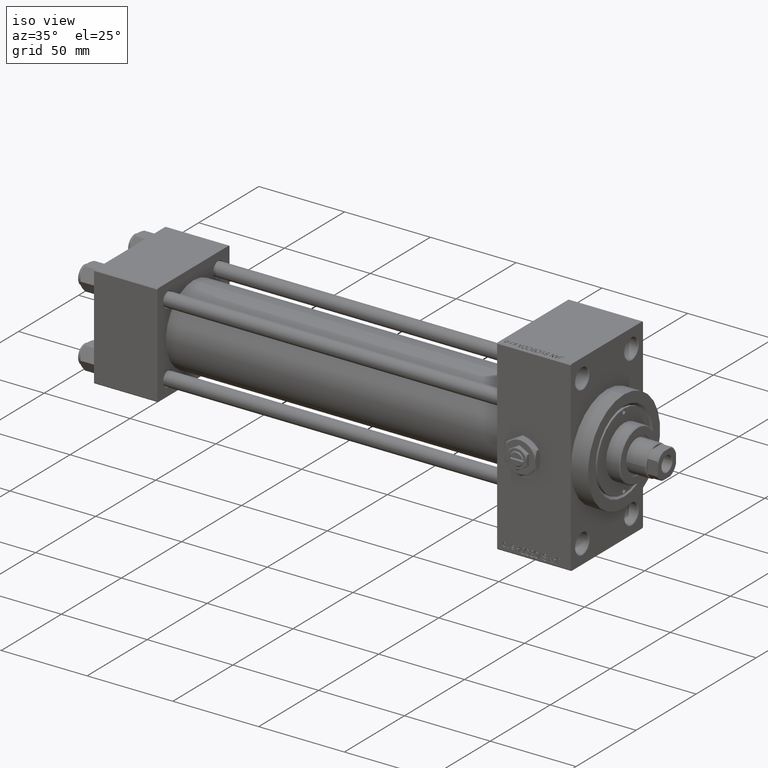
[diagram: clean part render]
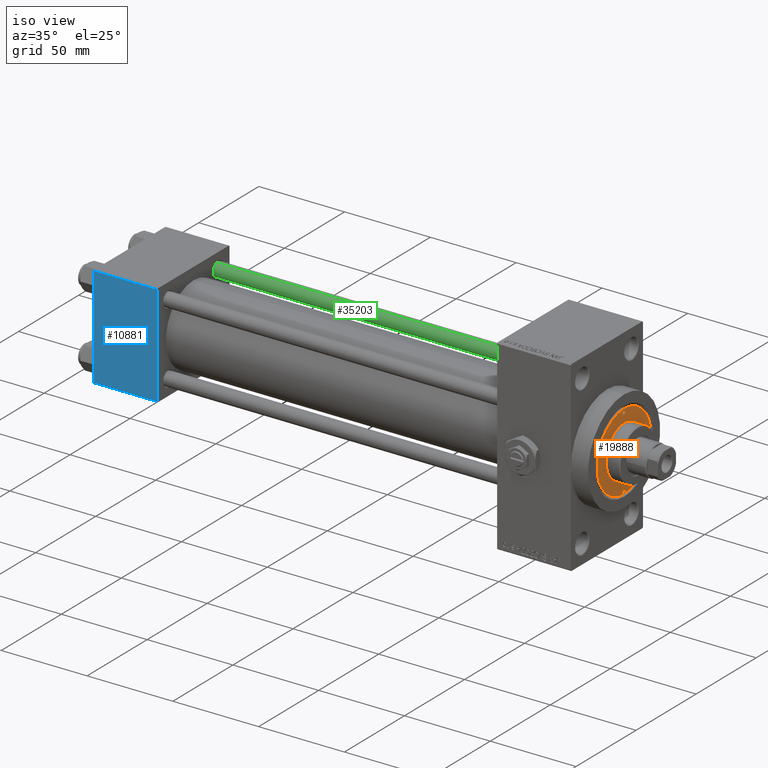
[diagram: same view with three faces highlighted in distinct colors, each labeled with its STEP entity id]
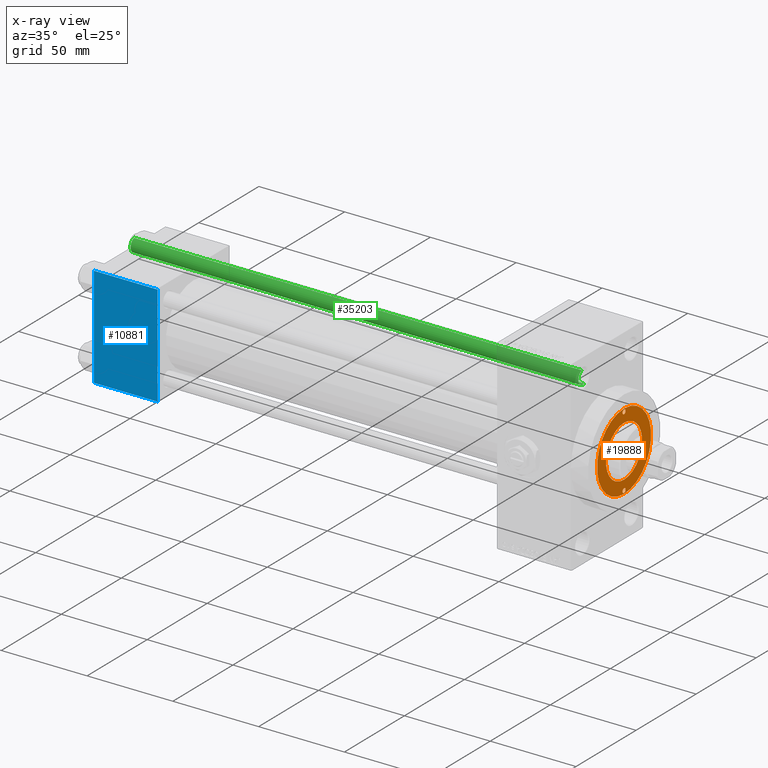
[diagram: x-ray of the same camera — body ghosted, the three highlighted faces saturated]
A machine part, iso view with three faces highlighted in distinct colors.
The next image is the same camera in x-ray (body ghosted, the three faces saturated) — at least one of them is partly hidden behind the body in this view.
Their STEP definitions:

[orange] entity #19888 — the highlighted planar face has unit normal (1, -0, -0).
#30 = CIRCLE ( 'NONE', #45300, 22.50000000000000355 ) ;
#138 = EDGE_CURVE ( 'NONE', #39208, #11843, #24783, .T. ) ;
#767 = FACE_BOUND ( 'NONE', #26268, .T. ) ;
#1372 = AXIS2_PLACEMENT_3D ( 'NONE', #26723, #27205, #30694 ) ;
#1956 = ORIENTED_EDGE ( 'NONE', *, *, #22706, .F. ) ;
#3972 = DIRECTION ( 'NONE',  ( 1.000000000000000000, 0.000000000000000000, 0.000000000000000000 ) ) ;
#5857 = DIRECTION ( 'NONE',  ( 1.000000000000000000, 0.000000000000000000, 0.000000000000000000 ) ) ;
#7526 = CARTESIAN_POINT ( 'NONE',  ( 0.000000000000000000, 0.000000000000000000, 43.25999999999999801 ) ) ;
#7822 = CIRCLE ( 'NONE', #21294, 1.249999999999997558 ) ;
#8007 = PLANE ( 'NONE',  #45244 ) ;
#8248 = FACE_OUTER_BOUND ( 'NONE', #26697, .T. ) ;
#9108 = ORIENTED_EDGE ( 'NONE', *, *, #138, .F. ) ;
#9769 = AXIS2_PLACEMENT_3D ( 'NONE', #29570, #44754, #10690 ) ;
#10322 = EDGE_LOOP ( 'NONE', ( #1956, #26576 ) ) ;
#10690 = DIRECTION ( 'NONE',  ( 1.000000000000000000, 0.000000000000000000, 0.000000000000000000 ) ) ;
#10821 = DIRECTION ( 'NONE',  ( -0.000000000000000000, -0.000000000000000000, 1.000000000000000000 ) ) ;
#11685 = CARTESIAN_POINT ( 'NONE',  ( 0.000000000000000000, 0.000000000000000000, 43.25999999999999801 ) ) ;
#11843 = VERTEX_POINT ( 'NONE', #20704 ) ;
#12585 = EDGE_CURVE ( 'NONE', #30317, #36027, #48239, .T. ) ;
#13065 = DIRECTION ( 'NONE',  ( -0.000000000000000000, -0.000000000000000000, 1.000000000000000000 ) ) ;
#14476 = CIRCLE ( 'NONE', #38271, 1.249999999999997558 ) ;
#15166 = CARTESIAN_POINT ( 'NONE',  ( 0.000000000000000000, 0.000000000000000000, 43.25999999999999801 ) ) ;
#15753 = ORIENTED_EDGE ( 'NONE', *, *, #40761, .F. ) ;
#16223 = CARTESIAN_POINT ( 'NONE',  ( 0.000000000000000000, 0.000000000000000000, 43.25999999999999801 ) ) ;
#17527 = CARTESIAN_POINT ( 'NONE',  ( -20.75000000000000000, 0.000000000000000000, 43.25999999999999801 ) ) ;
#17693 = ORIENTED_EDGE ( 'NONE', *, *, #36947, .T. ) ;
#18180 = CARTESIAN_POINT ( 'NONE',  ( 0.000000000000000000, 0.000000000000000000, 43.25999999999999801 ) ) ;
#18448 = EDGE_CURVE ( 'NONE', #22016, #29291, #7822, .T. ) ;
#19172 = VERTEX_POINT ( 'NONE', #49162 ) ;
#19584 = ORIENTED_EDGE ( 'NONE', *, *, #30427, .T. ) ;
#19888 = ADVANCED_FACE ( 'NONE', ( #42073, #767, #19899, #8248 ), #8007, .T. ) ;
#19899 = FACE_BOUND ( 'NONE', #42224, .T. ) ;
#20501 = CIRCLE ( 'NONE', #34771, 15.00000000000000000 ) ;
#20704 = CARTESIAN_POINT ( 'NONE',  ( -15.00000000000000000, 0.000000000000000000, 43.25999999999999801 ) ) ;
#21289 = VERTEX_POINT ( 'NONE', #32925 ) ;
#21294 = AXIS2_PLACEMENT_3D ( 'NONE', #17527, #13065, #5857 ) ;
#21433 = CIRCLE ( 'NONE', #9769, 1.249999999999997558 ) ;
#21962 = CARTESIAN_POINT ( 'NONE',  ( -19.50000000000000355, 0.000000000000000000, 43.25999999999999801 ) ) ;
#22016 = VERTEX_POINT ( 'NONE', #24282 ) ;
#22479 = CARTESIAN_POINT ( 'NONE',  ( 20.75000000000000000, 0.000000000000000000, 43.25999999999999801 ) ) ;
#22706 = EDGE_CURVE ( 'NONE', #29291, #22016, #21433, .T. ) ;
#23150 = DIRECTION ( 'NONE',  ( 0.000000000000000000, 0.000000000000000000, 1.000000000000000000 ) ) ;
#23575 = DIRECTION ( 'NONE',  ( 0.000000000000000000, 0.000000000000000000, 1.000000000000000000 ) ) ;
#24282 = CARTESIAN_POINT ( 'NONE',  ( -22.00000000000000000, 1.530808498934188612E-16, 43.25999999999999801 ) ) ;
#24783 = CIRCLE ( 'NONE', #43058, 15.00000000000000000 ) ;
#26139 = DIRECTION ( 'NONE',  ( 1.000000000000000000, 0.000000000000000000, 0.000000000000000000 ) ) ;
#26268 = EDGE_LOOP ( 'NONE', ( #40424, #15753 ) ) ;
#26576 = ORIENTED_EDGE ( 'NONE', *, *, #18448, .F. ) ;
#26697 = EDGE_LOOP ( 'NONE', ( #17693, #19584 ) ) ;
#26723 = CARTESIAN_POINT ( 'NONE',  ( 20.75000000000000000, 0.000000000000000000, 43.25999999999999801 ) ) ;
#27205 = DIRECTION ( 'NONE',  ( -0.000000000000000000, -0.000000000000000000, 1.000000000000000000 ) ) ;
#27900 = DIRECTION ( 'NONE',  ( 0.000000000000000000, 0.000000000000000000, 1.000000000000000000 ) ) ;
#28537 = EDGE_CURVE ( 'NONE', #11843, #39208, #20501, .T. ) ;
#29291 = VERTEX_POINT ( 'NONE', #21962 ) ;
#29474 = ORIENTED_EDGE ( 'NONE', *, *, #28537, .F. ) ;
#29561 = CARTESIAN_POINT ( 'NONE',  ( 15.00000000000000000, 1.836970198721029589E-15, 43.25999999999999801 ) ) ;
#29570 = CARTESIAN_POINT ( 'NONE',  ( -20.75000000000000000, 0.000000000000000000, 43.25999999999999801 ) ) ;
#30100 = CIRCLE ( 'NONE', #31686, 22.50000000000000355 ) ;
#30317 = VERTEX_POINT ( 'NONE', #44059 ) ;
#30427 = EDGE_CURVE ( 'NONE', #19172, #21289, #30100, .T. ) ;
#30694 = DIRECTION ( 'NONE',  ( 1.000000000000000000, 0.000000000000000000, 0.000000000000000000 ) ) ;
#31686 = AXIS2_PLACEMENT_3D ( 'NONE', #18180, #34088, #26139 ) ;
#32925 = CARTESIAN_POINT ( 'NONE',  ( -22.50000000000000355, 0.000000000000000000, 43.25999999999999801 ) ) ;
#33926 = DIRECTION ( 'NONE',  ( 1.000000000000000000, 0.000000000000000000, 0.000000000000000000 ) ) ;
#34088 = DIRECTION ( 'NONE',  ( 0.000000000000000000, 0.000000000000000000, 1.000000000000000000 ) ) ;
#34771 = AXIS2_PLACEMENT_3D ( 'NONE', #11685, #23575, #3972 ) ;
#36027 = VERTEX_POINT ( 'NONE', #43874 ) ;
#36947 = EDGE_CURVE ( 'NONE', #21289, #19172, #30, .T. ) ;
#38271 = AXIS2_PLACEMENT_3D ( 'NONE', #22479, #10821, #33926 ) ;
#38550 = DIRECTION ( 'NONE',  ( 1.000000000000000000, 0.000000000000000000, -0.000000000000000000 ) ) ;
#39208 = VERTEX_POINT ( 'NONE', #29561 ) ;
#40424 = ORIENTED_EDGE ( 'NONE', *, *, #12585, .F. ) ;
#40761 = EDGE_CURVE ( 'NONE', #36027, #30317, #14476, .T. ) ;
#41766 = DIRECTION ( 'NONE',  ( 1.000000000000000000, 0.000000000000000000, 0.000000000000000000 ) ) ;
#42073 = FACE_BOUND ( 'NONE', #10322, .T. ) ;
#42224 = EDGE_LOOP ( 'NONE', ( #29474, #9108 ) ) ;
#43058 = AXIS2_PLACEMENT_3D ( 'NONE', #16223, #27900, #46559 ) ;
#43874 = CARTESIAN_POINT ( 'NONE',  ( 19.50000000000000355, 1.530808498934188612E-16, 43.25999999999999801 ) ) ;
#44059 = CARTESIAN_POINT ( 'NONE',  ( 22.00000000000000000, 0.000000000000000000, 43.25999999999999801 ) ) ;
#44754 = DIRECTION ( 'NONE',  ( -0.000000000000000000, -0.000000000000000000, 1.000000000000000000 ) ) ;
#45244 = AXIS2_PLACEMENT_3D ( 'NONE', #7526, #23150, #38550 ) ;
#45300 = AXIS2_PLACEMENT_3D ( 'NONE', #15166, #45502, #41766 ) ;
#45502 = DIRECTION ( 'NONE',  ( 0.000000000000000000, 0.000000000000000000, 1.000000000000000000 ) ) ;
#46559 = DIRECTION ( 'NONE',  ( 1.000000000000000000, 0.000000000000000000, 0.000000000000000000 ) ) ;
#48239 = CIRCLE ( 'NONE', #1372, 1.249999999999997558 ) ;
#49162 = CARTESIAN_POINT ( 'NONE',  ( 22.50000000000000355, 2.755455298081545172E-15, 43.25999999999999801 ) ) ;

[blue] entity #10881 — the highlighted planar face has unit normal (0, 1, 0).
#1230 = EDGE_LOOP ( 'NONE', ( #42416, #17998, #44241, #42842 ) ) ;
#2252 = EDGE_CURVE ( 'NONE', #27768, #6315, #32161, .T. ) ;
#3693 = EDGE_CURVE ( 'NONE', #33414, #6315, #48115, .T. ) ;
#4298 = EDGE_CURVE ( 'NONE', #23734, #33414, #11386, .T. ) ;
#5463 = FACE_OUTER_BOUND ( 'NONE', #1230, .T. ) ;
#6315 = VERTEX_POINT ( 'NONE', #7120 ) ;
#7120 = CARTESIAN_POINT ( 'NONE',  ( 37.00000000000000000, -30.00000000000000000, -29.50000000000001776 ) ) ;
#8182 = VECTOR ( 'NONE', #13274, 1000.000000000000000 ) ;
#9381 = VECTOR ( 'NONE', #12077, 1000.000000000000000 ) ;
#9847 = DIRECTION ( 'NONE',  ( 1.000000000000000000, 0.000000000000000000, 0.000000000000000000 ) ) ;
#10881 = ADVANCED_FACE ( 'NONE', ( #5463 ), #28329, .F. ) ;
#11386 = LINE ( 'NONE', #27264, #29692 ) ;
#12077 = DIRECTION ( 'NONE',  ( -1.000000000000000000, 0.000000000000000000, 0.000000000000000000 ) ) ;
#13274 = DIRECTION ( 'NONE',  ( 0.000000000000000000, 0.000000000000000000, -1.000000000000000000 ) ) ;
#14309 = CARTESIAN_POINT ( 'NONE',  ( 37.00000000000000000, -30.00000000000000000, -29.50000000000001776 ) ) ;
#16642 = DIRECTION ( 'NONE',  ( 0.000000000000000000, -0.000000000000000000, 1.000000000000000000 ) ) ;
#17410 = EDGE_CURVE ( 'NONE', #27768, #23734, #34226, .T. ) ;
#17998 = ORIENTED_EDGE ( 'NONE', *, *, #3693, .T. ) ;
#19358 = VECTOR ( 'NONE', #9847, 1000.000000000000000 ) ;
#20121 = DIRECTION ( 'NONE',  ( -0.000000000000000000, 1.000000000000000000, 0.000000000000000000 ) ) ;
#20361 = AXIS2_PLACEMENT_3D ( 'NONE', #24108, #20121, #16642 ) ;
#22008 = CARTESIAN_POINT ( 'NONE',  ( 0.000000000000000000, -30.00000000000000000, 29.49999999999999289 ) ) ;
#23734 = VERTEX_POINT ( 'NONE', #22008 ) ;
#24108 = CARTESIAN_POINT ( 'NONE',  ( 37.00000000000000000, -30.00000000000000000, 29.99999999999999289 ) ) ;
#26764 = CARTESIAN_POINT ( 'NONE',  ( 37.00000000000000000, -30.00000000000000000, 29.49999999999999289 ) ) ;
#27030 = DIRECTION ( 'NONE',  ( 0.000000000000000000, 0.000000000000000000, -1.000000000000000000 ) ) ;
#27264 = CARTESIAN_POINT ( 'NONE',  ( 0.000000000000000000, -30.00000000000000000, 29.99999999999999289 ) ) ;
#27768 = VERTEX_POINT ( 'NONE', #40197 ) ;
#28329 = PLANE ( 'NONE',  #20361 ) ;
#29692 = VECTOR ( 'NONE', #27030, 1000.000000000000000 ) ;
#32161 = LINE ( 'NONE', #47327, #8182 ) ;
#33414 = VERTEX_POINT ( 'NONE', #39892 ) ;
#34226 = LINE ( 'NONE', #26764, #9381 ) ;
#39892 = CARTESIAN_POINT ( 'NONE',  ( 0.000000000000000000, -30.00000000000000000, -29.50000000000001776 ) ) ;
#40197 = CARTESIAN_POINT ( 'NONE',  ( 37.00000000000000000, -30.00000000000000000, 29.49999999999999289 ) ) ;
#42416 = ORIENTED_EDGE ( 'NONE', *, *, #4298, .T. ) ;
#42842 = ORIENTED_EDGE ( 'NONE', *, *, #17410, .T. ) ;
#44241 = ORIENTED_EDGE ( 'NONE', *, *, #2252, .F. ) ;
#47327 = CARTESIAN_POINT ( 'NONE',  ( 37.00000000000000000, -30.00000000000000000, 29.99999999999999289 ) ) ;
#48115 = LINE ( 'NONE', #14309, #19358 ) ;

[green] entity #35203 — the highlighted cylindrical surface (edge-blend (fillet) strip) has radius 4 mm, axis along (-1, -0, 0).
#139 = VECTOR ( 'NONE', #28471, 1000.000000000000000 ) ;
#310 = EDGE_CURVE ( 'NONE', #3825, #9557, #35099, .T. ) ;
#1573 = DIRECTION ( 'NONE',  ( 1.000000000000000000, 0.000000000000000000, 0.000000000000000000 ) ) ;
#1720 = CARTESIAN_POINT ( 'NONE',  ( -4.000000000000000000, 0.000000000000000000, 261.5000000000000000 ) ) ;
#2571 = CARTESIAN_POINT ( 'NONE',  ( 0.000000000000000000, 0.000000000000000000, 262.0000000000000000 ) ) ;
#3825 = VERTEX_POINT ( 'NONE', #3844 ) ;
#3844 = CARTESIAN_POINT ( 'NONE',  ( -4.000000000000000000, 0.000000000000000000, 0.5000000000000559552 ) ) ;
#4008 = DIRECTION ( 'NONE',  ( 1.000000000000000000, 0.000000000000000000, 0.000000000000000000 ) ) ;
#4176 = VECTOR ( 'NONE', #29405, 1000.000000000000000 ) ;
#4627 = EDGE_CURVE ( 'NONE', #14511, #22500, #28106, .T. ) ;
#7573 = CARTESIAN_POINT ( 'NONE',  ( 4.000000000000000000, 4.898587196589412829E-16, 261.5000000000000000 ) ) ;
#9557 = VERTEX_POINT ( 'NONE', #13224 ) ;
#9782 = CARTESIAN_POINT ( 'NONE',  ( -4.000000000000000000, 0.000000000000000000, 262.0000000000000000 ) ) ;
#9829 = LINE ( 'NONE', #21245, #139 ) ;
#11240 = DIRECTION ( 'NONE',  ( -0.000000000000000000, -0.000000000000000000, 1.000000000000000000 ) ) ;
#13224 = CARTESIAN_POINT ( 'NONE',  ( 4.000000000000000000, 4.898587196589412829E-16, 0.5000000000000559552 ) ) ;
#13583 = ORIENTED_EDGE ( 'NONE', *, *, #310, .T. ) ;
#13678 = AXIS2_PLACEMENT_3D ( 'NONE', #41810, #11240, #4008 ) ;
#14247 = LINE ( 'NONE', #9782, #4176 ) ;
#14511 = VERTEX_POINT ( 'NONE', #7573 ) ;
#16495 = DIRECTION ( 'NONE',  ( 0.000000000000000000, 0.000000000000000000, -1.000000000000000000 ) ) ;
#17745 = DIRECTION ( 'NONE',  ( -1.000000000000000000, 0.000000000000000000, 0.000000000000000000 ) ) ;
#19022 = AXIS2_PLACEMENT_3D ( 'NONE', #2571, #20721, #17745 ) ;
#20721 = DIRECTION ( 'NONE',  ( -0.000000000000000000, -0.000000000000000000, -1.000000000000000000 ) ) ;
#21245 = CARTESIAN_POINT ( 'NONE',  ( 4.000000000000000000, 4.898587196589412829E-16, 262.0000000000000000 ) ) ;
#22500 = VERTEX_POINT ( 'NONE', #1720 ) ;
#24958 = FACE_OUTER_BOUND ( 'NONE', #33177, .T. ) ;
#28106 = CIRCLE ( 'NONE', #32059, 4.000000000000000000 ) ;
#28471 = DIRECTION ( 'NONE',  ( -0.000000000000000000, -0.000000000000000000, -1.000000000000000000 ) ) ;
#29405 = DIRECTION ( 'NONE',  ( -0.000000000000000000, -0.000000000000000000, -1.000000000000000000 ) ) ;
#29819 = ORIENTED_EDGE ( 'NONE', *, *, #4627, .T. ) ;
#31664 = CARTESIAN_POINT ( 'NONE',  ( 0.000000000000000000, 0.000000000000000000, 261.5000000000000000 ) ) ;
#32059 = AXIS2_PLACEMENT_3D ( 'NONE', #31664, #16495, #1573 ) ;
#32470 = ORIENTED_EDGE ( 'NONE', *, *, #39651, .F. ) ;
#33177 = EDGE_LOOP ( 'NONE', ( #32470, #29819, #33462, #13583 ) ) ;
#33462 = ORIENTED_EDGE ( 'NONE', *, *, #41779, .T. ) ;
#35099 = CIRCLE ( 'NONE', #13678, 4.000000000000000000 ) ;
#35203 = ADVANCED_FACE ( 'NONE', ( #24958 ), #40119, .T. ) ;
#39651 = EDGE_CURVE ( 'NONE', #14511, #9557, #9829, .T. ) ;
#40119 = CYLINDRICAL_SURFACE ( 'NONE', #19022, 4.000000000000000000 ) ;
#41779 = EDGE_CURVE ( 'NONE', #22500, #3825, #14247, .T. ) ;
#41810 = CARTESIAN_POINT ( 'NONE',  ( 0.000000000000000000, 0.000000000000000000, 0.5000000000000559552 ) ) ;